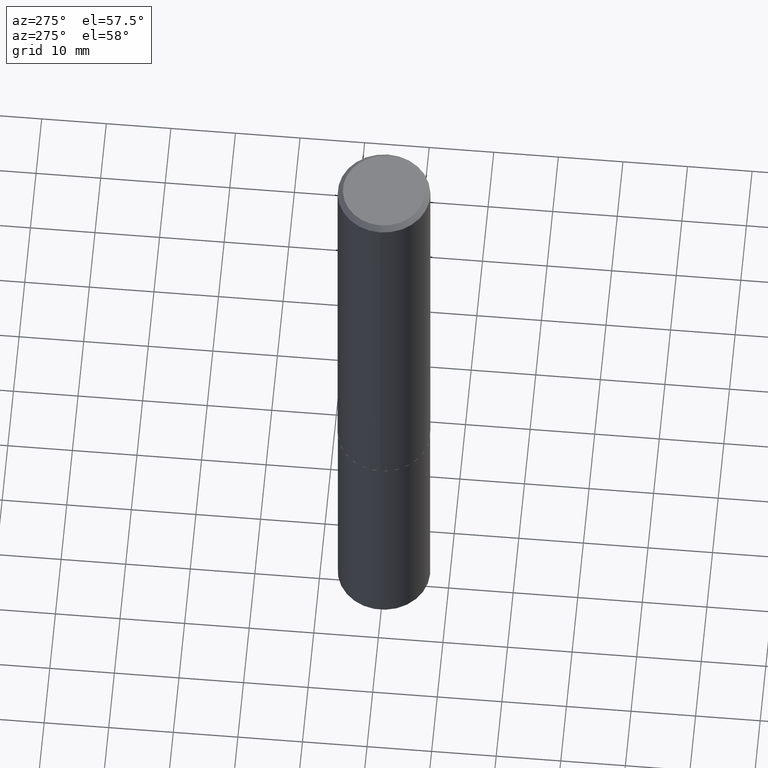
[diagram: clean part render]
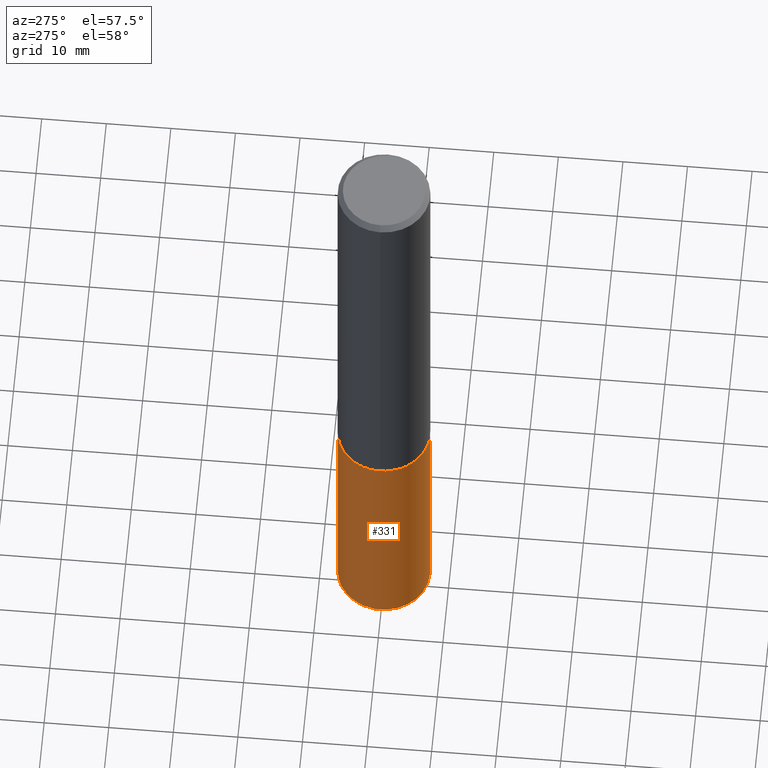
[diagram: same view with one face highlighted and labeled with its STEP entity id]
A machine part, auxiliary view. The second image highlights one B-rep face of the part: STEP entity #331.
In plain terms, the highlighted cylindrical surface (partial cylindrical patch) has radius 7.1501 mm, axis along (-0, 0, 1).
Its self-contained STEP definition (entity closure, byte-faithful):
#6 = EDGE_LOOP ( 'NONE', ( #276, #297, #321, #130 ) ) ;
#18 = CARTESIAN_POINT ( 'NONE',  ( 2.000177801164786352E-15, 0.2814999999999849289, -4.294672302330640790 ) ) ;
#30 = AXIS2_PLACEMENT_3D ( 'NONE', #231, #351, #87 ) ;
#38 = CARTESIAN_POINT ( 'NONE',  ( -1.965703993768578309E-15, -0.2815000000000149605, -4.294672302330638125 ) ) ;
#53 = AXIS2_PLACEMENT_3D ( 'NONE', #144, #81, #204 ) ;
#73 = DIRECTION ( 'NONE',  ( -2.445355825187269101E-29, 3.491643134062571246E-15, 1.000000000000000000 ) ) ;
#77 = VERTEX_POINT ( 'NONE', #38 ) ;
#81 = DIRECTION ( 'NONE',  ( -2.445355825187268821E-29, 3.491643134062571246E-15, 1.000000000000000000 ) ) ;
#87 = DIRECTION ( 'NONE',  ( -6.982962677686265922E-15, -1.000000000000000000, 3.881844395970533976E-15 ) ) ;
#104 = DIRECTION ( 'NONE',  ( -2.445355825187268821E-29, 3.491643134062571246E-15, 1.000000000000000000 ) ) ;
#112 = DIRECTION ( 'NONE',  ( -2.445355825187269101E-29, 3.491643134062571246E-15, 1.000000000000000000 ) ) ;
#119 = EDGE_CURVE ( 'NONE', #222, #77, #191, .T. ) ;
#130 = ORIENTED_EDGE ( 'NONE', *, *, #254, .F. ) ;
#144 = CARTESIAN_POINT ( 'NONE',  ( 6.672217090795527604E-29, -9.526157684899640905E-15, -2.728400000000000158 ) ) ;
#153 = AXIS2_PLACEMENT_3D ( 'NONE', #156, #104, #365 ) ;
#156 = CARTESIAN_POINT ( 'NONE',  ( 1.050231018912923150E-28, -1.499502161540478992E-14, -4.294672302330639901 ) ) ;
#160 = CARTESIAN_POINT ( 'NONE',  ( 2.000177801164748486E-15, 0.2814999999999904801, -2.728400000000001491 ) ) ;
#166 = VECTOR ( 'NONE', #112, 39.37007874015748143 ) ;
#172 = LINE ( 'NONE', #380, #166 ) ;
#183 = EDGE_CURVE ( 'NONE', #222, #375, #308, .T. ) ;
#191 = CIRCLE ( 'NONE', #153, 0.2814999999999999725 ) ;
#204 = DIRECTION ( 'NONE',  ( -6.982962677686265922E-15, -1.000000000000000000, 3.881844395970533976E-15 ) ) ;
#222 = VERTEX_POINT ( 'NONE', #18 ) ;
#229 = VECTOR ( 'NONE', #73, 39.37007874015748143 ) ;
#231 = CARTESIAN_POINT ( 'NONE',  ( 6.672217090795527604E-29, -9.526157684899640905E-15, -2.728400000000000158 ) ) ;
#236 = CARTESIAN_POINT ( 'NONE',  ( 2.000177801164787141E-15, 0.2814999999999904801, -2.728400000000001491 ) ) ;
#254 = EDGE_CURVE ( 'NONE', #375, #370, #388, .T. ) ;
#276 = ORIENTED_EDGE ( 'NONE', *, *, #183, .F. ) ;
#292 = CYLINDRICAL_SURFACE ( 'NONE', #30, 0.2814999999999999725 ) ;
#294 = FACE_OUTER_BOUND ( 'NONE', #6, .T. ) ;
#297 = ORIENTED_EDGE ( 'NONE', *, *, #119, .T. ) ;
#308 = LINE ( 'NONE', #160, #229 ) ;
#318 = EDGE_CURVE ( 'NONE', #77, #370, #172, .T. ) ;
#321 = ORIENTED_EDGE ( 'NONE', *, *, #318, .T. ) ;
#331 = ADVANCED_FACE ( 'NONE', ( #294 ), #292, .T. ) ;
#351 = DIRECTION ( 'NONE',  ( -2.445355825187268821E-29, 3.491643134062571246E-15, 1.000000000000000000 ) ) ;
#359 = CARTESIAN_POINT ( 'NONE',  ( -1.965703993768616963E-15, -0.2815000000000095204, -2.728399999999999270 ) ) ;
#365 = DIRECTION ( 'NONE',  ( -6.982962677686265922E-15, -1.000000000000000000, 3.881844395970533976E-15 ) ) ;
#370 = VERTEX_POINT ( 'NONE', #359 ) ;
#375 = VERTEX_POINT ( 'NONE', #236 ) ;
#380 = CARTESIAN_POINT ( 'NONE',  ( -1.965703993768616963E-15, -0.2815000000000095204, -2.728399999999999270 ) ) ;
#388 = CIRCLE ( 'NONE', #53, 0.2814999999999999725 ) ;